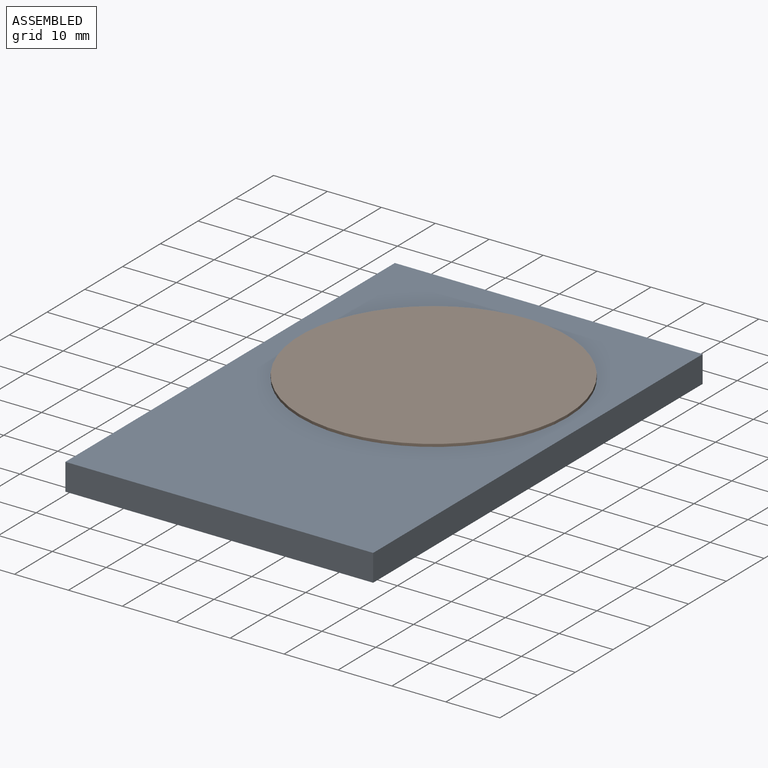
[diagram: assembled view]
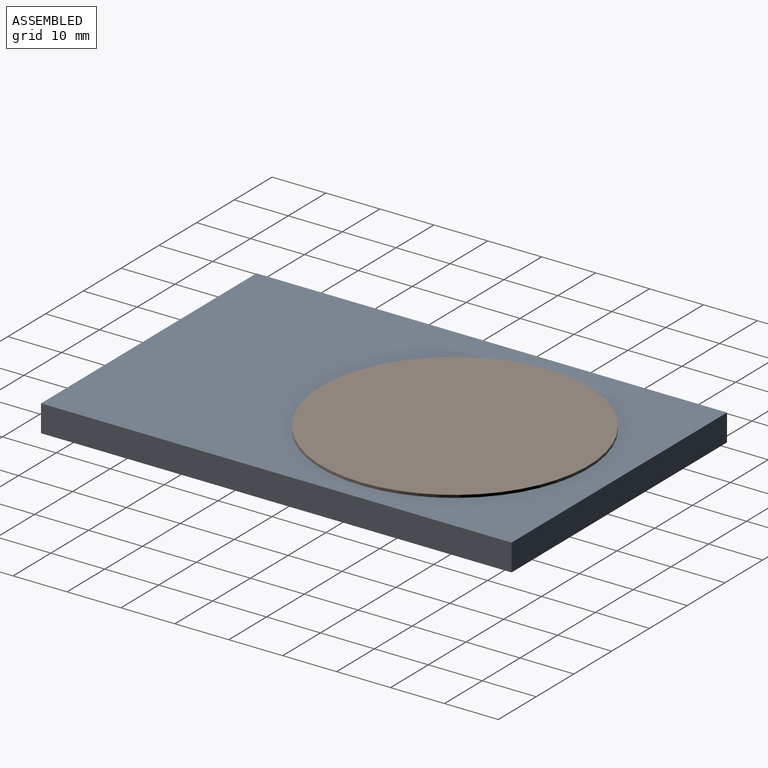
[diagram: assembled view, second angle]
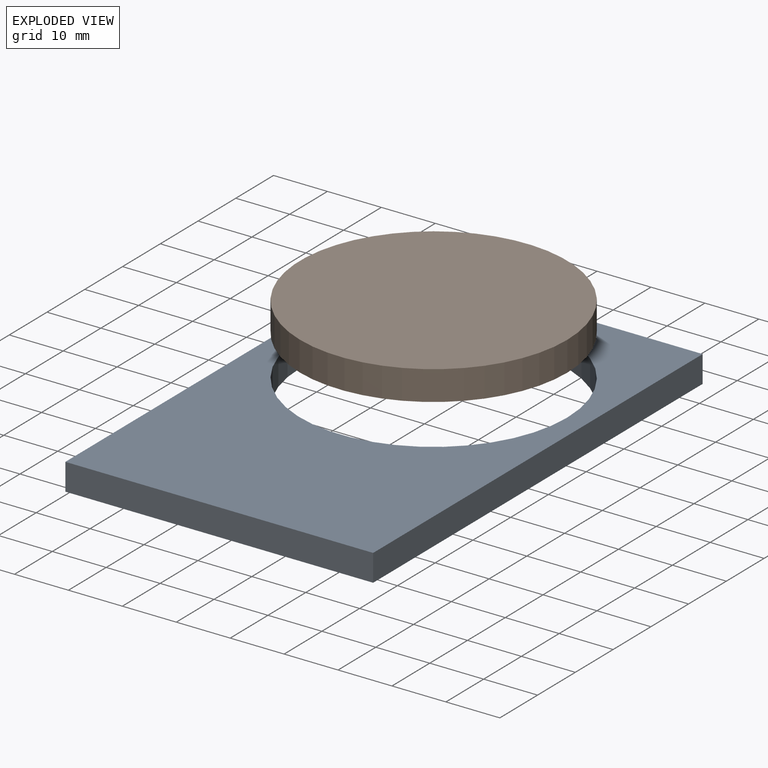
[diagram: exploded view]
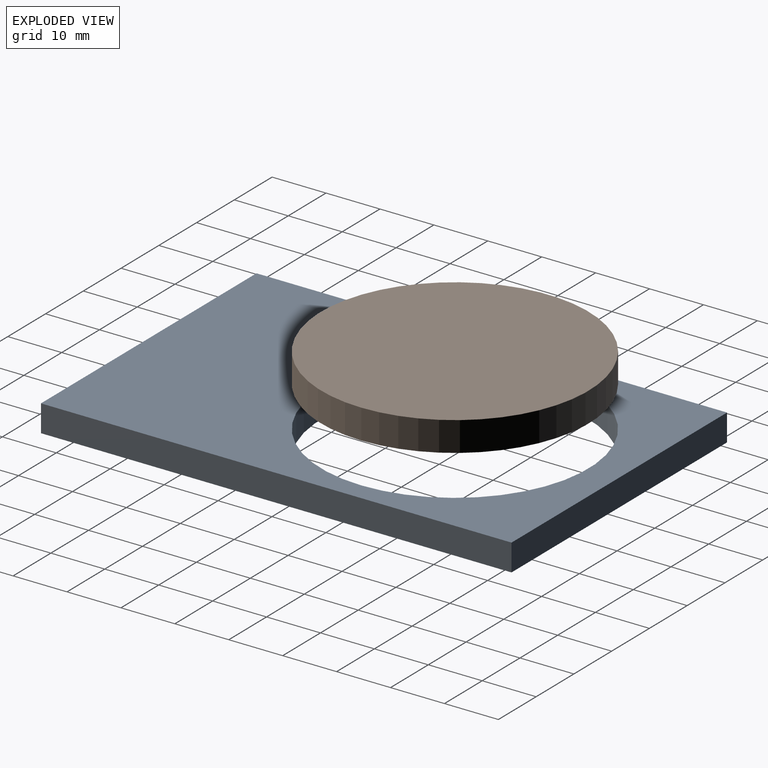
[diagram: exploded view, second angle]
ASSEMBLY  parts=2 mates=2
PART A: 7 faces, bbox 57.1x87.3x5 mm
  f0: plane 57.08x5mm, normal (0,1,0), area 285.4mm2, adj f1,f4,f5,f6
  f1: plane 87.27x5mm, normal (-1,0,0), area 436.3mm2, adj f0,f2,f5,f6
  f2: plane 57.08x5mm, normal (0,-1,0), area 285.4mm2, adj f1,f4,f5,f6
  f3: cylinder r=24.79mm len=49.58mm, axis (0,0,-1), area 778.8mm2, adj f5,f6
  f4: plane 87.27x5mm, normal (1,0,0), area 436.3mm2, adj f0,f2,f5,f6
  f5: plane 87.27x57.08mm, normal (0,0,1), area 3050.6mm2, adj f0,f1,f2,f3,f4
  f6: plane 87.27x57.08mm, normal (0,0,-1), area 3050.6mm2, adj f0,f1,f2,f3,f4
PART B: 3 faces, bbox 49.6x49.6x5.5 mm
  f0: cylinder r=24.79mm len=49.58mm, axis (0,0,-1), area 856.7mm2, adj f1,f2
  f1: plane 49.58x49.58mm, normal (0,0,1), area 1930.8mm2, adj f0
  f2: plane 49.58x49.58mm, normal (0,0,-1), area 1930.8mm2, adj f0
PLACE A t=(-0.23,-0.38,-2.87)mm
PLACE B t=(-0.23,12.77,-2.87)mm
MATE parallel B.f0 <-> A.f6  axis (0,0,-1) through (-0.23,12.77,-2.87)mm
MATE cylindrical B.f0 <-> A.f3  axis (0,0,-1) through (-0.23,12.77,-0.12)mm
